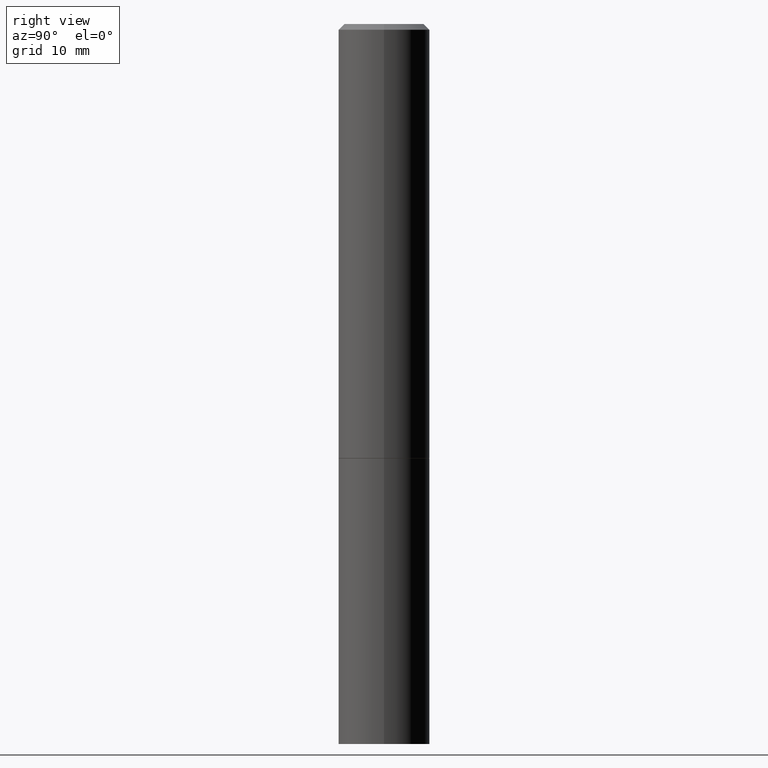
[diagram: clean part render]
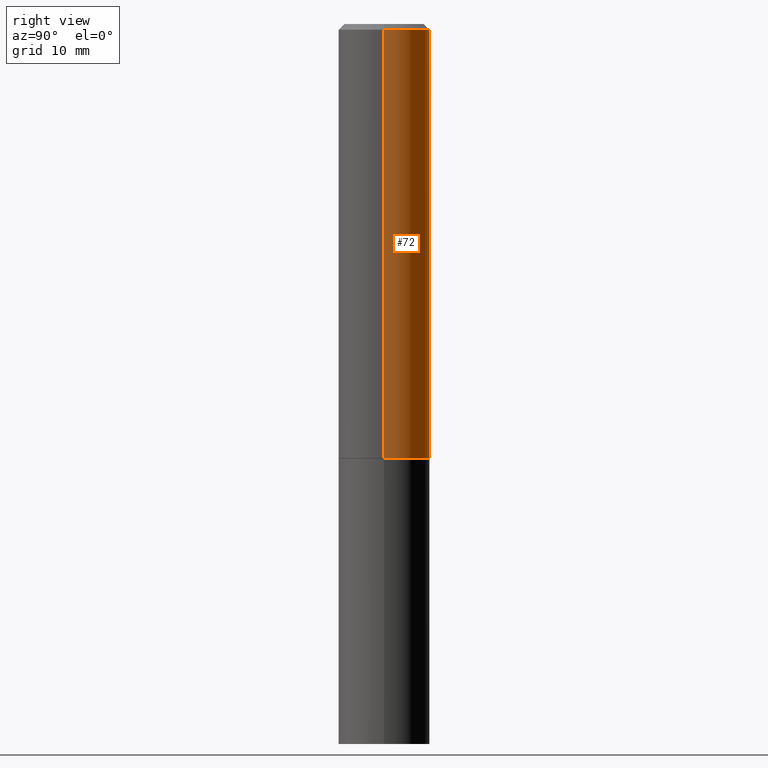
[diagram: same view with one face highlighted and labeled with its STEP entity id]
A machine part, right view. The second image highlights one B-rep face of the part: STEP entity #72.
In plain terms, the highlighted cylindrical surface (partial cylindrical patch) has radius 4.0005 mm, axis along (-0, 0, 1).
Its self-contained STEP definition (entity closure, byte-faithful):
#1 = VECTOR ( 'NONE', #203, 39.37007874015748143 ) ;
#13 = CYLINDRICAL_SURFACE ( 'NONE', #324, 0.1574999999999998901 ) ;
#28 = CIRCLE ( 'NONE', #227, 0.1574999999999998346 ) ;
#56 = ORIENTED_EDGE ( 'NONE', *, *, #57, .F. ) ;
#57 = EDGE_CURVE ( 'NONE', #225, #60, #28, .T. ) ;
#60 = VERTEX_POINT ( 'NONE', #152 ) ;
#64 = FACE_OUTER_BOUND ( 'NONE', #336, .T. ) ;
#70 = DIRECTION ( 'NONE',  ( 1.000000000000000000, -6.982962677686265922E-15, 0.000000000000000000 ) ) ;
#72 = ADVANCED_FACE ( 'NONE', ( #64 ), #13, .T. ) ;
#76 = EDGE_CURVE ( 'NONE', #254, #60, #182, .T. ) ;
#99 = DIRECTION ( 'NONE',  ( -2.445468806185136597E-29, 3.491481338843145583E-15, 1.000000000000000000 ) ) ;
#103 = CARTESIAN_POINT ( 'NONE',  ( 0.1575000000000000011, -6.319581223306091410E-15, -1.495000000000000329 ) ) ;
#126 = LINE ( 'NONE', #233, #1 ) ;
#137 = EDGE_CURVE ( 'NONE', #249, #225, #126, .T. ) ;
#138 = CARTESIAN_POINT ( 'NONE',  ( -0.1575000000000000011, -1.525692305351524236E-15, -1.495000000000000329 ) ) ;
#143 = AXIS2_PLACEMENT_3D ( 'NONE', #252, #347, #170 ) ;
#152 = CARTESIAN_POINT ( 'NONE',  ( -0.1574999999999998346, 1.029986994958722604E-15, -0.02000000000000003511 ) ) ;
#165 = VECTOR ( 'NONE', #286, 39.37007874015748143 ) ;
#170 = DIRECTION ( 'NONE',  ( 1.000000000000000000, -6.982962677686268288E-15, 0.000000000000000000 ) ) ;
#171 = ORIENTED_EDGE ( 'NONE', *, *, #358, .T. ) ;
#175 = CARTESIAN_POINT ( 'NONE',  ( 4.890937612370281041E-31, -6.982962677686302702E-17, -0.02000000000000003511 ) ) ;
#179 = ORIENTED_EDGE ( 'NONE', *, *, #76, .T. ) ;
#182 = LINE ( 'NONE', #288, #165 ) ;
#198 = CARTESIAN_POINT ( 'NONE',  ( 0.000000000000000000, 0.000000000000000000, 0.000000000000000000 ) ) ;
#203 = DIRECTION ( 'NONE',  ( -2.445468806185136877E-29, 3.491481338843145188E-15, 1.000000000000000000 ) ) ;
#225 = VERTEX_POINT ( 'NONE', #267 ) ;
#227 = AXIS2_PLACEMENT_3D ( 'NONE', #175, #99, #70 ) ;
#228 = CIRCLE ( 'NONE', #143, 0.1575000000000000011 ) ;
#233 = CARTESIAN_POINT ( 'NONE',  ( 0.1574999999999998901, -1.099816621735586297E-15, 7.679978421878593829E-30 ) ) ;
#249 = VERTEX_POINT ( 'NONE', #103 ) ;
#252 = CARTESIAN_POINT ( 'NONE',  ( 3.655975865246779683E-29, -5.219764601570503930E-15, -1.495000000000000329 ) ) ;
#254 = VERTEX_POINT ( 'NONE', #138 ) ;
#259 = DIRECTION ( 'NONE',  ( 1.000000000000000000, -6.982962677686266711E-15, 4.876176775795935793E-29 ) ) ;
#267 = CARTESIAN_POINT ( 'NONE',  ( 0.1574999999999998346, -1.150358061425878091E-15, -0.02000000000000003511 ) ) ;
#286 = DIRECTION ( 'NONE',  ( -2.445468806185136877E-29, 3.491481338843145188E-15, 1.000000000000000000 ) ) ;
#288 = CARTESIAN_POINT ( 'NONE',  ( -0.1574999999999998901, 1.119104808822157012E-15, -7.747322767151471379E-30 ) ) ;
#321 = DIRECTION ( 'NONE',  ( -2.445468806185136597E-29, 3.491481338843145583E-15, 1.000000000000000000 ) ) ;
#324 = AXIS2_PLACEMENT_3D ( 'NONE', #198, #321, #259 ) ;
#336 = EDGE_LOOP ( 'NONE', ( #171, #179, #56, #349 ) ) ;
#347 = DIRECTION ( 'NONE',  ( -2.445468806185136597E-29, 3.491481338843145583E-15, 1.000000000000000000 ) ) ;
#349 = ORIENTED_EDGE ( 'NONE', *, *, #137, .F. ) ;
#358 = EDGE_CURVE ( 'NONE', #249, #254, #228, .T. ) ;